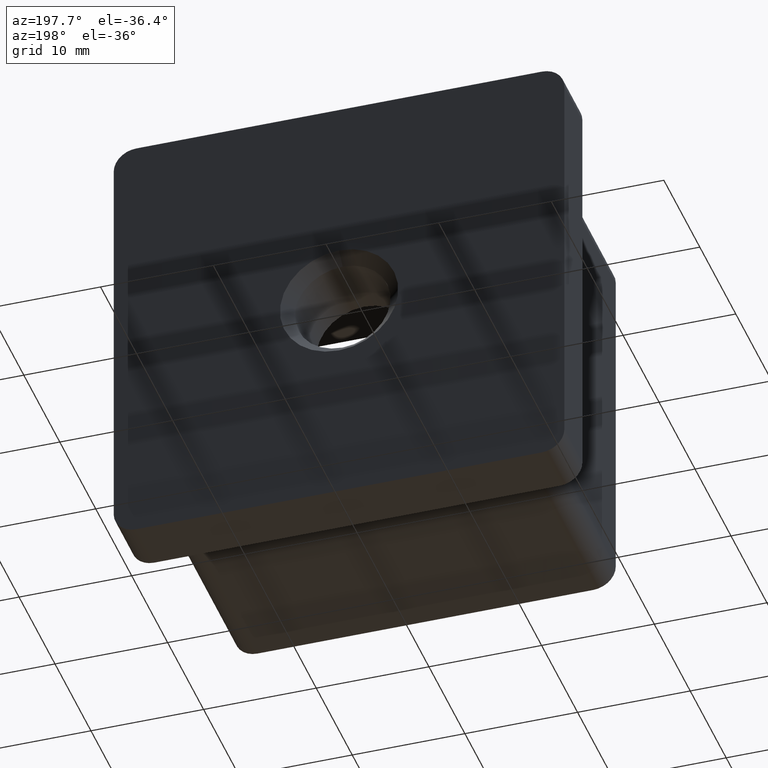
[diagram: clean part render]
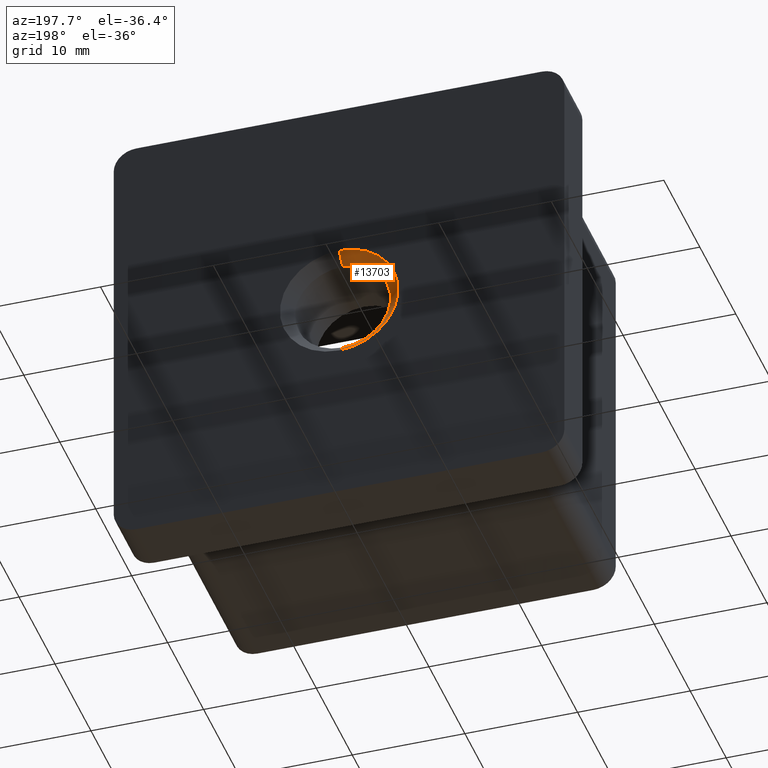
[diagram: same view with one face highlighted and labeled with its STEP entity id]
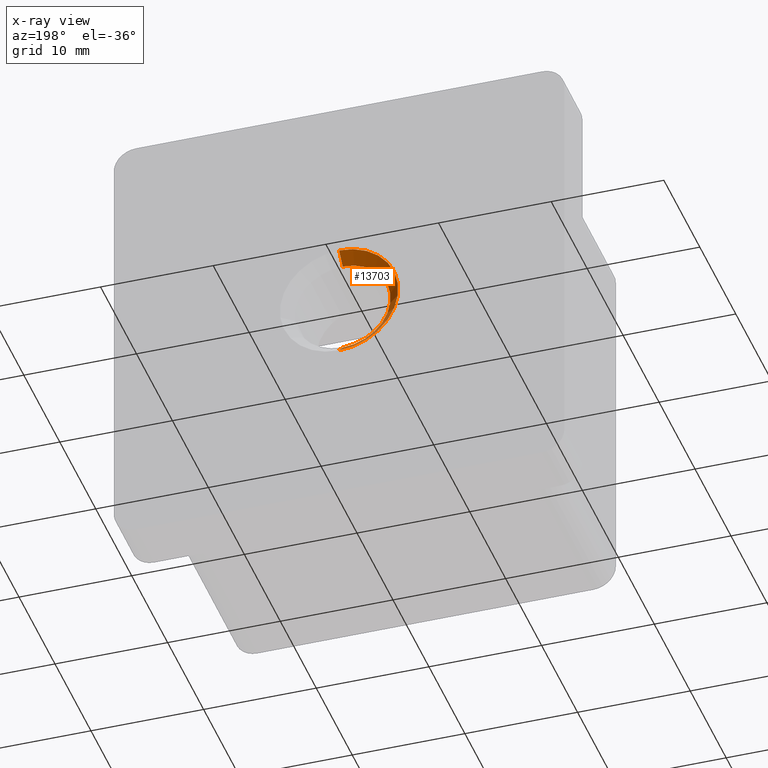
[diagram: x-ray of the same camera — body ghosted, the highlighted face saturated]
A machine part, auxiliary view. The second image highlights one B-rep face of the part: STEP entity #13703.
The next image is the same camera in x-ray: the body ghosted, the highlighted face saturated — about 0% of this face is hidden behind the body in this view.
In plain terms, the highlighted conical surface has half-angle 45 deg.
Its self-contained STEP definition (entity closure, byte-faithful):
#829 = CARTESIAN_POINT ( 'NONE',  ( 2.449293598294707400E-016, 4.000000000000007100, 0.0000000000000000000 ) ) ;
#1019 = CARTESIAN_POINT ( 'NONE',  ( 2.449293598294707400E-016, 5.000000000000000900, 5.249999999999984000 ) ) ;
#1415 = ORIENTED_EDGE ( 'NONE', *, *, #5017, .T. ) ;
#1526 = CONICAL_SURFACE ( 'NONE', #4125, 5.249999999999984000, 0.7853981633974447300 ) ;
#1648 = LINE ( 'NONE', #13257, #5577 ) ;
#1732 = FACE_OUTER_BOUND ( 'NONE', #12208, .T. ) ;
#2835 = LINE ( 'NONE', #1019, #4996 ) ;
#3362 = VERTEX_POINT ( 'NONE', #6667 ) ;
#3690 = DIRECTION ( 'NONE',  ( 8.659560562354904500E-017, 0.7071067811865500200, -0.7071067811865451300 ) ) ;
#4125 = AXIS2_PLACEMENT_3D ( 'NONE', #10374, #14562, #9186 ) ;
#4989 = EDGE_CURVE ( 'NONE', #8796, #5539, #17063, .T. ) ;
#4996 = VECTOR ( 'NONE', #10584, 1000.000000000000100 ) ;
#5017 = EDGE_CURVE ( 'NONE', #8796, #14881, #1648, .T. ) ;
#5129 = DIRECTION ( 'NONE',  ( -0.0000000000000000000, -1.000000000000000000, -0.0000000000000000000 ) ) ;
#5209 = ORIENTED_EDGE ( 'NONE', *, *, #11071, .F. ) ;
#5539 = VERTEX_POINT ( 'NONE', #6214 ) ;
#5577 = VECTOR ( 'NONE', #3690, 1000.000000000000100 ) ;
#6214 = CARTESIAN_POINT ( 'NONE',  ( 7.654042494670953700E-016, 4.000000000000007100, 4.249999999999996400 ) ) ;
#6667 = CARTESIAN_POINT ( 'NONE',  ( 2.449293598294707400E-016, 5.000000000000000000, 5.249999999999983100 ) ) ;
#6735 = AXIS2_PLACEMENT_3D ( 'NONE', #829, #10829, #12159 ) ;
#7671 = CIRCLE ( 'NONE', #17718, 5.249999999999983100 ) ;
#7806 = CARTESIAN_POINT ( 'NONE',  ( 8.878689293818291300E-016, 5.000000000000000000, -5.249999999999983100 ) ) ;
#7915 = ORIENTED_EDGE ( 'NONE', *, *, #4989, .F. ) ;
#8669 = ORIENTED_EDGE ( 'NONE', *, *, #14018, .F. ) ;
#8796 = VERTEX_POINT ( 'NONE', #17261 ) ;
#9186 = DIRECTION ( 'NONE',  ( 0.0000000000000000000, 0.0000000000000000000, 1.000000000000000000 ) ) ;
#9355 = DIRECTION ( 'NONE',  ( 0.0000000000000000000, 0.0000000000000000000, 1.000000000000000000 ) ) ;
#9423 = CARTESIAN_POINT ( 'NONE',  ( 2.449293598294707400E-016, 5.000000000000000000, 0.0000000000000000000 ) ) ;
#10374 = CARTESIAN_POINT ( 'NONE',  ( 2.449293598294707400E-016, 5.000000000000000900, 0.0000000000000000000 ) ) ;
#10584 = DIRECTION ( 'NONE',  ( 0.0000000000000000000, 0.7071067811865500200, 0.7071067811865451300 ) ) ;
#10829 = DIRECTION ( 'NONE',  ( -0.0000000000000000000, 1.000000000000000000, -0.0000000000000000000 ) ) ;
#11071 = EDGE_CURVE ( 'NONE', #3362, #14881, #7671, .T. ) ;
#12159 = DIRECTION ( 'NONE',  ( 0.0000000000000000000, 0.0000000000000000000, 1.000000000000000000 ) ) ;
#12208 = EDGE_LOOP ( 'NONE', ( #7915, #1415, #5209, #8669 ) ) ;
#13257 = CARTESIAN_POINT ( 'NONE',  ( 8.878689293818291300E-016, 5.000000000000000900, -5.249999999999984000 ) ) ;
#13703 = ADVANCED_FACE ( 'NONE', ( #1732 ), #1526, .F. ) ;
#14018 = EDGE_CURVE ( 'NONE', #5539, #3362, #2835, .T. ) ;
#14562 = DIRECTION ( 'NONE',  ( -0.0000000000000000000, 1.000000000000000000, -0.0000000000000000000 ) ) ;
#14881 = VERTEX_POINT ( 'NONE', #7806 ) ;
#17063 = CIRCLE ( 'NONE', #6735, 4.249999999999996400 ) ;
#17261 = CARTESIAN_POINT ( 'NONE',  ( 2.449293598294707400E-016, 4.000000000000007100, -4.249999999999996400 ) ) ;
#17718 = AXIS2_PLACEMENT_3D ( 'NONE', #9423, #5129, #9355 ) ;